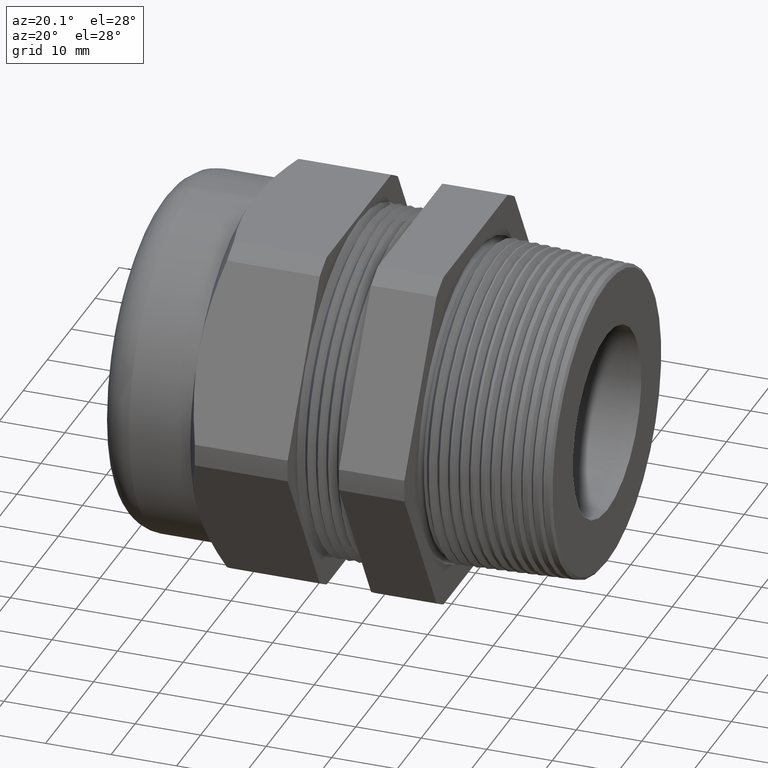
[diagram: clean part render]
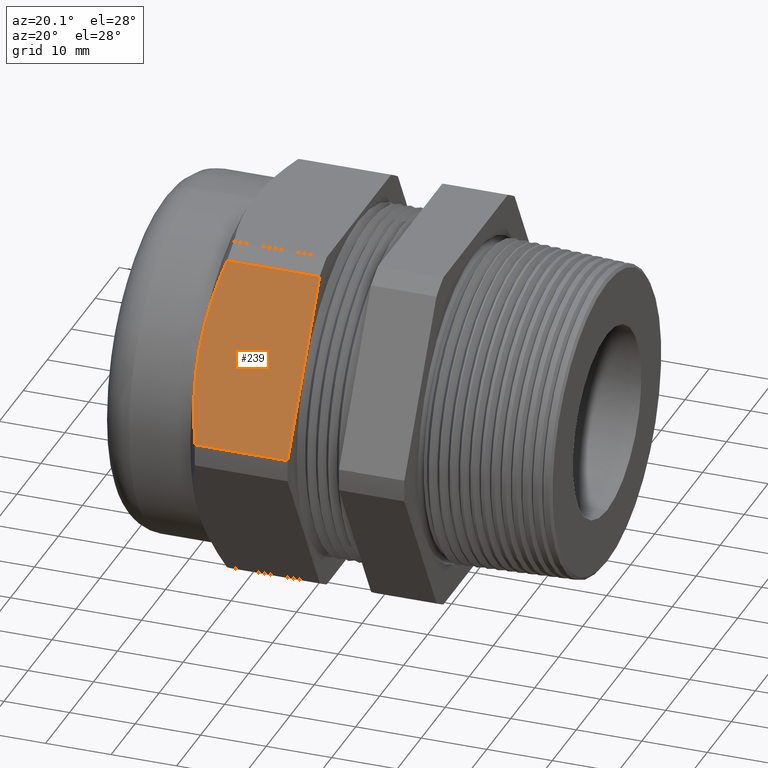
[diagram: same view with one face highlighted and labeled with its STEP entity id]
A machine part, auxiliary view. The second image highlights one B-rep face of the part: STEP entity #239.
In plain terms, the highlighted planar face has unit normal (0, -0.866, 0.5).
Its self-contained STEP definition (entity closure, byte-faithful):
#145 = VERTEX_POINT ( 'NONE', #1614 ) ;
#151 = VERTEX_POINT ( 'NONE', #1664 ) ;
#153 = EDGE_CURVE ( 'NONE', #145, #151, #1663, .T. ) ;
#162 = ORIENTED_EDGE ( 'NONE', *, *, #163, .T. ) ;
#163 = EDGE_CURVE ( 'NONE', #244, #145, #1642, .T. ) ;
#174 = VERTEX_POINT ( 'NONE', #1734 ) ;
#177 = EDGE_CURVE ( 'NONE', #174, #178, #1732, .T. ) ;
#178 = VERTEX_POINT ( 'NONE', #1728 ) ;
#220 = ORIENTED_EDGE ( 'NONE', *, *, #153, .T. ) ;
#221 = ORIENTED_EDGE ( 'NONE', *, *, #222, .T. ) ;
#222 = EDGE_CURVE ( 'NONE', #151, #178, #1816, .T. ) ;
#239 = ADVANCED_FACE ( 'NONE', ( #1827 ), #1826, .T. ) ;
#240 = EDGE_LOOP ( 'NONE', ( #241, #242, #162, #220, #221 ) ) ;
#241 = ORIENTED_EDGE ( 'NONE', *, *, #177, .F. ) ;
#242 = ORIENTED_EDGE ( 'NONE', *, *, #243, .T. ) ;
#243 = EDGE_CURVE ( 'NONE', #174, #244, #1821, .T. ) ;
#244 = VERTEX_POINT ( 'NONE', #1820 ) ;
#1614 = CARTESIAN_POINT ( 'NONE',  ( -1.258850276243621300, -1.168535519404735100, 0.06603710994211092800 ) ) ;
#1642 = B_SPLINE_CURVE_WITH_KNOTS ( 'NONE', 3,
 ( #1700, #1699, #1698, #1697, #1696, #1695, #1694, #1693, #1692, #1691 ),
 .UNSPECIFIED., .F., .F.,
 ( 4, 2, 2, 2, 4 ),
 ( 0.01350892317937172700, 0.01518608892047186900, 0.01686325466157201400, 0.02021758614377230200, 0.02692624910817286900 ),
 .UNSPECIFIED. ) ;
#1660 = DIRECTION ( 'NONE',  ( 1.000000000000000000, 0.0000000000000000000, 0.0000000000000000000 ) ) ;
#1661 = VECTOR ( 'NONE', #1660, 39.37007874015748100 ) ;
#1662 = CARTESIAN_POINT ( 'NONE',  ( -4.674745017870971100, -1.168535519404735100, 0.06603710994211092800 ) ) ;
#1663 = LINE ( 'NONE', #1662, #1661 ) ;
#1664 = CARTESIAN_POINT ( 'NONE',  ( -0.7012499999999994800, -1.168535519404735100, 0.06603710994211092800 ) ) ;
#1691 = CARTESIAN_POINT ( 'NONE',  ( -1.258850276243621300, -1.168535519404735100, 0.06603710994211092800 ) ) ;
#1692 = CARTESIAN_POINT ( 'NONE',  ( -1.281283844589601500, -1.125394693013341800, 0.1407592131325117700 ) ) ;
#1693 = CARTESIAN_POINT ( 'NONE',  ( -1.299506375669673900, -1.081908961044174600, 0.2160787103074323100 ) ) ;
#1694 = CARTESIAN_POINT ( 'NONE',  ( -1.318280434585773300, -1.015979276614104700, 0.3302722734672954300 ) ) ;
#1695 = CARTESIAN_POINT ( 'NONE',  ( -1.323111113761380200, -0.9938858086234094700, 0.3685392825425761700 ) ) ;
#1696 = CARTESIAN_POINT ( 'NONE',  ( -1.327982786052545900, -0.9605511354678815100, 0.4262766301016530600 ) ) ;
#1697 = CARTESIAN_POINT ( 'NONE',  ( -1.329211196312531700, -0.9493959908156195400, 0.4455979074051507600 ) ) ;
#1698 = CARTESIAN_POINT ( 'NONE',  ( -1.330843233864887500, -0.9271624852257257500, 0.4841074687172136600 ) ) ;
#1699 = CARTESIAN_POINT ( 'NONE',  ( -1.331249999999999800, -0.9160683005763529100, 0.5033231601984782300 ) ) ;
#1700 = CARTESIAN_POINT ( 'NONE',  ( -1.331250000000000300, -0.9049965469547379700, 0.5225000000000001900 ) ) ;
#1728 = CARTESIAN_POINT ( 'NONE',  ( -0.7012499999999994800, -0.6414575745047403900, 0.9789628900578897200 ) ) ;
#1729 = DIRECTION ( 'NONE',  ( 1.000000000000000000, 0.0000000000000000000, 0.0000000000000000000 ) ) ;
#1730 = VECTOR ( 'NONE', #1729, 39.37007874015748100 ) ;
#1731 = CARTESIAN_POINT ( 'NONE',  ( -4.674745017870971100, -0.6414575745047403900, 0.9789628900578897200 ) ) ;
#1732 = LINE ( 'NONE', #1731, #1730 ) ;
#1734 = CARTESIAN_POINT ( 'NONE',  ( -1.258850276243621100, -0.6414575745047407200, 0.9789628900578897200 ) ) ;
#1808 = DIRECTION ( 'NONE',  ( 0.0000000000000000000, 0.5000000000000003300, 0.8660254037844383700 ) ) ;
#1809 = VECTOR ( 'NONE', #1808, 39.37007874015748100 ) ;
#1810 = CARTESIAN_POINT ( 'NONE',  ( -0.7012500000000000400, -0.6505965469547376800, 0.9631337254455228900 ) ) ;
#1816 = LINE ( 'NONE', #1810, #1809 ) ;
#1820 = CARTESIAN_POINT ( 'NONE',  ( -1.331250000000000300, -0.9049965469547379700, 0.5225000000000001900 ) ) ;
#1821 = B_SPLINE_CURVE_WITH_KNOTS ( 'NONE', 3,
 ( #1879, #1878, #1877, #1876, #1875, #1874 ),
 .UNSPECIFIED., .F., .F.,
 ( 4, 2, 4 ),
 ( 2.361307452598198300E-007, 0.006754579655058493700, 0.01350892317937172700 ),
 .UNSPECIFIED. ) ;
#1822 = DIRECTION ( 'NONE',  ( 0.0000000000000000000, -0.5000000000000003300, -0.8660254037844383700 ) ) ;
#1823 = DIRECTION ( 'NONE',  ( 0.0000000000000000000, -0.8660254037844384900, 0.5000000000000004400 ) ) ;
#1824 = CARTESIAN_POINT ( 'NONE',  ( -4.674745017870971100, -0.6414575745047408400, 0.9789628900578893900 ) ) ;
#1825 = AXIS2_PLACEMENT_3D ( 'NONE', #1824, #1823, #1822 ) ;
#1826 = PLANE ( 'NONE',  #1825 ) ;
#1827 = FACE_OUTER_BOUND ( 'NONE', #240, .T. ) ;
#1874 = CARTESIAN_POINT ( 'NONE',  ( -1.331250000000000300, -0.9049965469547379700, 0.5225000000000001900 ) ) ;
#1875 = CARTESIAN_POINT ( 'NONE',  ( -1.331250000000000300, -0.8604079737777704500, 0.5997296741795107300 ) ) ;
#1876 = CARTESIAN_POINT ( 'NONE',  ( -1.324572485262368800, -0.8161876306610383900, 0.6763215551858189300 ) ) ;
#1877 = CARTESIAN_POINT ( 'NONE',  ( -1.299614570445701600, -0.7283867829507445500, 0.8283970843676654600 ) ) ;
#1878 = CARTESIAN_POINT ( 'NONE',  ( -1.281390332025215100, -0.6848031813350528000, 0.9038860967428837800 ) ) ;
#1879 = CARTESIAN_POINT ( 'NONE',  ( -1.258850276243621100, -0.6414575745047407200, 0.9789628900578897200 ) ) ;